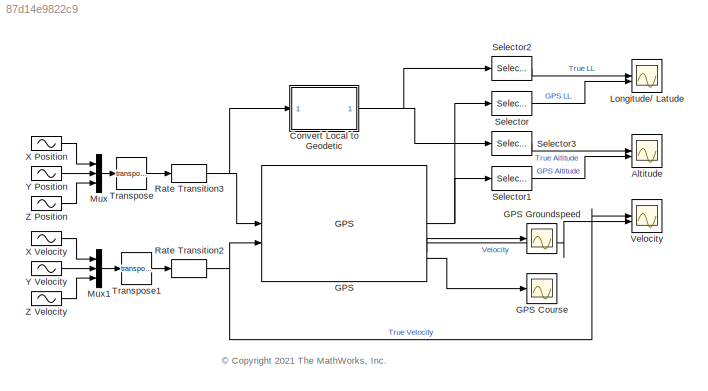
MODEL slx_87d14e9822c9
KIND model
CONFIG AbsTol = auto
CONFIG EnableMultiTasking = off
CONFIG FixedStep = auto
CONFIG MaxStep = auto
CONFIG MinStep = auto
CONFIG RelTol = 1e-3
CONFIG SampleTimeConstraint = Unconstrained
CONFIG SolverName = VariableStepAuto
CONFIG StartTime = 0.0
CONFIG StopTime = 10
BLOCK [Sin]  X Position
  Amplitude = 3
  Bias = 4
  Frequency = pi
  SampleTime = 0
BLOCK [Sin]  X Velocity
  Bias = 3
  SampleTime = 0
BLOCK [Sin]  Y Position
  Amplitude = 3
  Frequency = pi
  SampleTime = 0
BLOCK [Sin]  Y Velocity
  SampleTime = 0
BLOCK [Sin]  Z Position
  Amplitude = 3
  SampleTime = 0
BLOCK [Sin]  Z Velocity
  Bias = -3
  SampleTime = 0
BLOCK [Scope] Altitude
  Floating = off
  NumInputPorts = 2
  ScopeSpecificationString = Simulink.scopes.TimeScopeBlockCfg('CurrentConfiguration', extmgr.ConfigurationSet(extmgr.Configuration('Core','General UI',true),extmgr.Configuration('Core','Source UI',true),extmgr.Configuration('Sources','WiredSimulink',true),extmgr.Configuration('Visuals','Time Domain',true,'SerializedDisplays',{struct('MinYLimReal','-4.06419','MaxYLimReal','4.41185','YLabelReal','Meters','MinYLimMag','0.00000'...<+1590ch>
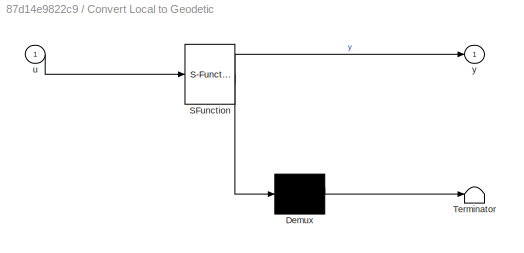
BLOCK [SubSystem] Convert Local to Geodetic
  ErrorFcn = Stateflow.Translate.translate
  PermitHierarchicalResolution = ExplicitOnly
  SFBlockType = MATLAB Function
  TreatAsAtomicUnit = on
BLOCK [Demux] Convert Local to Geodetic/ Demux 
  Outputs = 1
BLOCK [S-Function] Convert Local to Geodetic/ SFunction 
  EnableBusSupport = off
  FunctionName = sf_sfun
  PortCounts = [1 2]
  SFcnIsStateOwnerBlock = off
  SFunctionDeploymentMode = off
  Tag = Stateflow S-Function 2
BLOCK [Terminator] Convert Local to Geodetic/ Terminator 
BLOCK [Inport] Convert Local to Geodetic/u
BLOCK [Outport] Convert Local to Geodetic/y
BLOCK [Reference] GPS  REF=sensorgpslib/GPS
  SourceBlock = sensorgpslib/GPS
  SourceType = fusion.internal.simulink.gpsSensor
BLOCK [Scope] GPS Course
  Floating = off
  NumInputPorts = 1
  ScopeSpecificationString = Simulink.scopes.TimeScopeBlockCfg('CurrentConfiguration', extmgr.ConfigurationSet(extmgr.Configuration('Core','General UI',true),extmgr.Configuration('Core','Source UI',true),extmgr.Configuration('Sources','WiredSimulink',true,'DataLoggingVariableName','ScopeData3'),extmgr.Configuration('Visuals','Time Domain',true,'SerializedDisplays',{struct('MinYLimReal','-44.96087','MaxYLimReal','404.95221','Y...<+1440ch>
BLOCK [Scope] GPS Groundspeed
  Floating = off
  NumInputPorts = 1
  ScopeSpecificationString = Simulink.scopes.TimeScopeBlockCfg('CurrentConfiguration', extmgr.ConfigurationSet(extmgr.Configuration('Core','General UI',true),extmgr.Configuration('Core','Source UI',true),extmgr.Configuration('Sources','WiredSimulink',true,'DataLoggingVariableName','ScopeData2'),extmgr.Configuration('Visuals','Time Domain',true,'SerializedDisplays',{struct('MinYLimReal','1.98151','MaxYLimReal','4.70231','YLabe...<+1502ch>
BLOCK [Scope] Longitude// Latude
  Floating = off
  NumInputPorts = 2
  ScopeSpecificationString = Simulink.scopes.TimeScopeBlockCfg('CurrentConfiguration', extmgr.ConfigurationSet(extmgr.Configuration('Core','General UI',true),extmgr.Configuration('Core','Source UI',true),extmgr.Configuration('Sources','WiredSimulink',true,'DataLoggingVariableName','ScopeData1'),extmgr.Configuration('Visuals','Time Domain',true,'SerializedDisplays',{struct('MinYLimReal','-0.00005','MaxYLimReal','0.00008','YLab...<+1709ch>
BLOCK [Mux] Mux
  DisplayOption = bar
  Inputs = 3
BLOCK [Mux] Mux1
  DisplayOption = bar
  Inputs = 3
BLOCK [RateTransition] Rate Transition2
  OutPortSampleTime = .01
BLOCK [RateTransition] Rate Transition3
  OutPortSampleTime = .01
BLOCK [Selector] Selector
  IndexOptions = Index vector (dialog)
  Indices = [1 2]
  InputPortWidth = 3
  OutputSizes = 1
BLOCK [Selector] Selector1
  IndexOptions = Index vector (dialog)
  Indices = [3]
  InputPortWidth = 3
  OutputSizes = 1
BLOCK [Selector] Selector2
  IndexOptions = Index vector (dialog)
  Indices = [1 2]
  InputPortWidth = 3
  OutputSizes = 1
BLOCK [Selector] Selector3
  IndexOptions = Index vector (dialog)
  Indices = [3]
  InputPortWidth = 3
  OutputSizes = 1
BLOCK [Math] Transpose
  Operator = transpose
BLOCK [Math] Transpose1
  Operator = transpose
BLOCK [Scope] Velocity
  Floating = off
  NumInputPorts = 2
  ScopeSpecificationString = Simulink.scopes.TimeScopeBlockCfg('CurrentConfiguration', extmgr.ConfigurationSet(extmgr.Configuration('Core','General UI',true),extmgr.Configuration('Core','Source UI',true),extmgr.Configuration('Sources','WiredSimulink',true,'DataLoggingVariableName','ScopeData4'),extmgr.Configuration('Visuals','Time Domain',true,'SerializedDisplays',{struct('MinYLimReal','-5.22279','MaxYLimReal','5.3639','YLabe...<+1718ch>
ANNOTATION (root): <copyright redacted>
LINE  X Position:1 -> Mux:1
LINE  X Velocity:1 -> Mux1:1
LINE  Y Position:1 -> Mux:2
LINE  Y Velocity:1 -> Mux1:2
LINE  Z Position:1 -> Mux:3
LINE  Z Velocity:1 -> Mux1:3
NET Convert Local to Geodetic:1 -> Selector2:1, Selector3:1
NET GPS:1 -> Selector1:1, Selector:1
LINE GPS:2 -> Velocity:2
LINE GPS:3 -> GPS Groundspeed:1
LINE GPS:4 -> GPS Course:1
LINE Mux1:1 -> Transpose1:1
LINE Mux:1 -> Transpose:1
NET Rate Transition2:1 -> GPS:2, Velocity:1
NET Rate Transition3:1 -> Convert Local to Geodetic:1, GPS:1
LINE Selector1:1 -> Altitude:2
LINE Selector2:1 -> Longitude// Latude:1
LINE Selector3:1 -> Altitude:1
LINE Selector:1 -> Longitude// Latude:2
LINE Transpose1:1 -> Rate Transition2:1
LINE Transpose:1 -> Rate Transition3:1
note: NET lines group one-source signal fan-out (src -> all destinations, sorted); 1:1 wires keep LINE
CHART Convert Local to Geodetic states=1 transitions=1
  STATE_LABEL 'eML_blk_kernel()'
  STATE_LABEL 'SCRIPT:\nfunction y = local2geo(u)\n\ny = ned2lla(u,[0 0 0],"ellipsoid");\n\nend'
CHART  states=0 transitions=0
